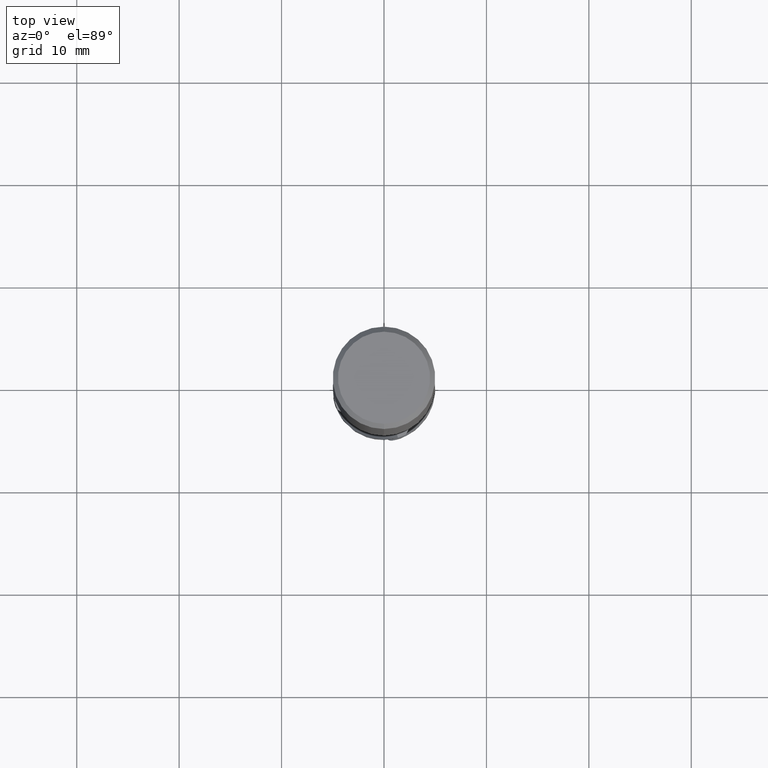
[diagram: clean part render]
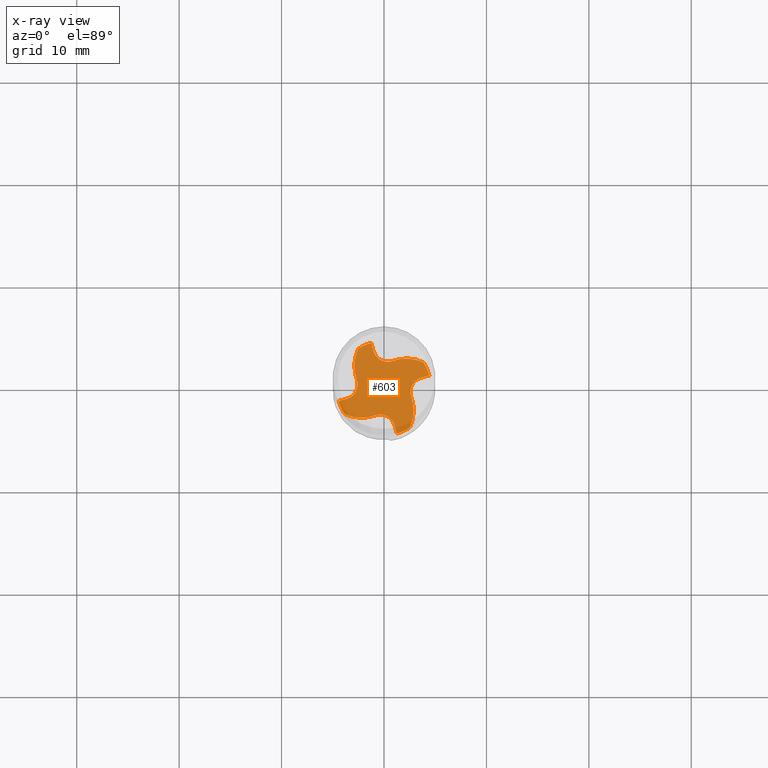
[diagram: x-ray — body ghosted, one internal face saturated and labeled with its STEP entity id]
A machine part, top view, then the same camera in x-ray: the body is ghosted and one INTERNAL B-rep face — a face not visible from any outside direction — is saturated and labeled: STEP entity #603.
In plain terms, the highlighted planar face has unit normal (0, 0, -1).
Its self-contained STEP definition (entity closure, byte-faithful):
#531=EDGE_CURVE('',#577,#921,#1512,.T.);
#553=EDGE_CURVE('',#657,#903,#1537,.T.);
#577=VERTEX_POINT('',#1562);
#579=EDGE_CURVE('',#1281,#689,#1564,.T.);
#603=ADVANCED_FACE('',(#1593),#1594,.T.);
#657=VERTEX_POINT('',#1650);
#661=EDGE_CURVE('',#921,#1133,#1654,.T.);
#689=VERTEX_POINT('',#1685);
#693=EDGE_CURVE('',#919,#1087,#1689,.T.);
#777=VERTEX_POINT('',#1781);
#847=EDGE_CURVE('',#777,#919,#1860,.T.);
#861=EDGE_CURVE('',#1181,#777,#1875,.T.);
#873=VERTEX_POINT('',#1887);
#903=VERTEX_POINT('',#1921);
#919=VERTEX_POINT('',#1938);
#921=VERTEX_POINT('',#1940);
#939=VERTEX_POINT('',#1960);
#977=EDGE_CURVE('',#1291,#995,#2004,.T.);
#983=EDGE_CURVE('',#903,#1181,#2013,.T.);
#995=VERTEX_POINT('',#2026);
#1001=EDGE_CURVE('',#1087,#1291,#2032,.T.);
#1057=EDGE_CURVE('',#873,#577,#2091,.T.);
#1087=VERTEX_POINT('',#2122);
#1133=VERTEX_POINT('',#2171);
#1157=EDGE_CURVE('',#939,#1281,#2197,.T.);
#1181=VERTEX_POINT('',#2222);
#1223=EDGE_CURVE('',#1133,#1403,#2267,.T.);
#1281=VERTEX_POINT('',#2328);
#1291=VERTEX_POINT('',#2338);
#1331=EDGE_CURVE('',#1403,#657,#2382,.T.);
#1351=EDGE_CURVE('',#689,#873,#2404,.T.);
#1403=VERTEX_POINT('',#2460);
#1417=EDGE_CURVE('',#995,#939,#2476,.T.);
#1512=CIRCLE('',#2601,3.978);
#1537=CIRCLE('',#2706,3.978);
#1562=CARTESIAN_POINT('',(-2.62815486418103,0.751553896561688,-59.0000000000003));
#1564=CIRCLE('',#2780,4.59995);
#1593=FACE_OUTER_BOUND('',#3071,.T.);
#1594=PLANE('',#3072);
#1650=CARTESIAN_POINT('',(0.751553896561688,2.62815486418106,-59.0000000000003));
#1654=CIRCLE('',#3409,4.59995);
#1685=CARTESIAN_POINT('',(-4.42682930070273,-1.25008893481215,-59.0));
#1689=CIRCLE('',#3884,3.978);
#1781=CARTESIAN_POINT('',(3.62089701929082,1.0225023352925,-59.0000000000003));
#1860=CIRCLE('',#4902,1.4375);
#1875=LINE('',#4939,#4940);
#1887=CARTESIAN_POINT('',(-3.6208970192908,-1.0225023352925,-59.0000000000003));
#1921=CARTESIAN_POINT('',(3.84286764021476,2.52822236013573,-59.0));
#1938=CARTESIAN_POINT('',(2.62815486418106,-0.751553896561688,-59.0000000000003));
#1940=CARTESIAN_POINT('',(-2.52822236013566,3.8428676402148,-59.0));
#1960=CARTESIAN_POINT('',(-0.751553896561688,-2.62815486418102,-59.0000000000003));
#2004=LINE('',#6259,#6260);
#2013=CIRCLE('',#6270,4.59995);
#2026=CARTESIAN_POINT('',(1.0225023352925,-3.62089701929079,-59.0000000000003));
#2032=CIRCLE('',#6339,4.59995);
#2091=CIRCLE('',#6752,1.4375);
#2122=CARTESIAN_POINT('',(2.52822236013545,-3.84286764021494,-59.0000000000003));
#2171=CARTESIAN_POINT('',(-1.25008893481215,4.42682930070273,-59.0));
#2197=CIRCLE('',#7585,3.978);
#2222=CARTESIAN_POINT('',(4.42682930070273,1.25008893481215,-59.0000000000003));
#2267=LINE('',#7823,#7824);
#2328=CARTESIAN_POINT('',(-3.84286764021481,-2.52822236013564,-59.0));
#2338=CARTESIAN_POINT('',(1.25008893481215,-4.42682930070273,-59.0));
#2382=CIRCLE('',#8248,1.4375);
#2404=LINE('',#8291,#8292);
#2460=CARTESIAN_POINT('',(-1.0225023352925,3.62089701929082,-59.0000000000003));
#2476=CIRCLE('',#8669,1.4375);
#2601=AXIS2_PLACEMENT_3D('',#9033,#9034,#9035);
#2706=AXIS2_PLACEMENT_3D('',#9065,#9066,#9067);
#2780=AXIS2_PLACEMENT_3D('',#9082,#9083,#9084);
#3071=EDGE_LOOP('',(#9137,#9138,#9139,#9140,#9141,#9142,#9143,#9144,#9145,#9146,#9147,#9148,#9149,#9150,#9151,#9152));
#3072=AXIS2_PLACEMENT_3D('',#9153,#9154,#9155);
#3409=AXIS2_PLACEMENT_3D('',#9189,#9190,#9191);
#3884=AXIS2_PLACEMENT_3D('',#9249,#9250,#9251);
#4902=AXIS2_PLACEMENT_3D('',#9441,#9442,#9443);
#4939=CARTESIAN_POINT('',(3.62089701929082,1.0225023352925,-59.0000000000003));
#4940=VECTOR('',#9457,0.999999999999999);
#6259=CARTESIAN_POINT('',(1.0225023352925,-3.62089701929079,-59.0000000000003));
#6260=VECTOR('',#9617,0.999999999999999);
#6270=AXIS2_PLACEMENT_3D('',#9634,#9635,#9636);
#6339=AXIS2_PLACEMENT_3D('',#9647,#9648,#9649);
#6752=AXIS2_PLACEMENT_3D('',#9684,#9685,#9686);
#7585=AXIS2_PLACEMENT_3D('',#9761,#9762,#9763);
#7823=CARTESIAN_POINT('',(-1.0225023352925,3.62089701929082,-59.0000000000003));
#7824=VECTOR('',#9818,0.999999999999999);
#8248=AXIS2_PLACEMENT_3D('',#9897,#9898,#9899);
#8291=CARTESIAN_POINT('',(-3.6208970192908,-1.0225023352925,-59.0000000000003));
#8292=VECTOR('',#9921,0.999999999999999);
#8669=AXIS2_PLACEMENT_3D('',#9996,#9997,#9998);
#9033=CARTESIAN_POINT('',(1.08499430580805,2.17879152268054,-59.0000000000003));
#9034=DIRECTION('',(4.05231403988182E-015,2.77555756156289E-015,-1.0));
#9035=DIRECTION('',(-0.93342110859454,-0.358782711442651,-4.77833753118239E-015));
#9065=CARTESIAN_POINT('',(2.17879152268054,-1.08499430580802,-59.0000000000003));
#9066=DIRECTION('',(2.77555756156289E-015,-4.05231403988182E-015,-1.0));
#9067=DIRECTION('',(-0.358782711442651,0.93342110859454,-4.77833753118239E-015));
#9082=CARTESIAN_POINT('',(0.0,0.0,-59.0));
#9083=DIRECTION('',(0.0,0.0,-1.0));
#9084=DIRECTION('',(0.0,1.0,0.0));
#9137=ORIENTED_EDGE('',*,*,#977,.T.);
#9138=ORIENTED_EDGE('',*,*,#1417,.T.);
#9139=ORIENTED_EDGE('',*,*,#1157,.T.);
#9140=ORIENTED_EDGE('',*,*,#579,.T.);
#9141=ORIENTED_EDGE('',*,*,#1351,.T.);
#9142=ORIENTED_EDGE('',*,*,#1057,.T.);
#9143=ORIENTED_EDGE('',*,*,#531,.T.);
#9144=ORIENTED_EDGE('',*,*,#661,.T.);
#9145=ORIENTED_EDGE('',*,*,#1223,.T.);
#9146=ORIENTED_EDGE('',*,*,#1331,.T.);
#9147=ORIENTED_EDGE('',*,*,#553,.T.);
#9148=ORIENTED_EDGE('',*,*,#983,.T.);
#9149=ORIENTED_EDGE('',*,*,#861,.T.);
#9150=ORIENTED_EDGE('',*,*,#847,.T.);
#9151=ORIENTED_EDGE('',*,*,#693,.T.);
#9152=ORIENTED_EDGE('',*,*,#1001,.T.);
#9153=CARTESIAN_POINT('',(0.0,2.299975,-59.0));
#9154=DIRECTION('',(0.0,0.0,-1.0));
#9155=DIRECTION('',(0.0,1.0,0.0));
#9189=CARTESIAN_POINT('',(0.0,0.0,-59.0));
#9190=DIRECTION('',(0.0,0.0,-1.0));
#9191=DIRECTION('',(0.0,1.0,0.0));
#9249=CARTESIAN_POINT('',(-1.08499430580802,-2.17879152268054,-59.0000000000003));
#9250=DIRECTION('',(-4.05231403988182E-015,-2.77555756156289E-015,-1.0));
#9251=DIRECTION('',(0.93342110859454,0.358782711442651,-4.77833753118239E-015));
#9441=CARTESIAN_POINT('',(4.01155405781517,-0.360896858193911,-59.0000000000003));
#9442=DIRECTION('',(4.05231403988182E-015,2.77555756156289E-015,1.0));
#9443=DIRECTION('',(-0.962364656309244,-0.271761417951098,4.65409326678321E-015));
#9457=DIRECTION('',(-0.962364656290339,-0.271761418018045,4.66293670342566E-015));
#9617=DIRECTION('',(-0.271761418018045,0.962364656290339,4.66293670342566E-015));
#9634=CARTESIAN_POINT('',(0.0,0.0,-59.0));
#9635=DIRECTION('',(0.0,0.0,-1.0));
#9636=DIRECTION('',(0.0,1.0,0.0));
#9647=CARTESIAN_POINT('',(0.0,0.0,-59.0));
#9648=DIRECTION('',(0.0,0.0,-1.0));
#9649=DIRECTION('',(0.0,1.0,0.0));
#9684=CARTESIAN_POINT('',(-4.01155405781515,0.360896858193911,-59.0000000000003));
#9685=DIRECTION('',(-4.05231403988182E-015,-2.77555756156289E-015,1.0));
#9686=DIRECTION('',(0.962364656309244,0.271761417951098,4.65409326678321E-015));
#9761=CARTESIAN_POINT('',(-2.17879152268054,1.08499430580806,-59.0000000000003));
#9762=DIRECTION('',(-2.77555756156289E-015,4.05231403988182E-015,-1.0));
#9763=DIRECTION('',(0.358782711442651,-0.93342110859454,-4.77833753118239E-015));
#9818=DIRECTION('',(0.271761418018045,-0.962364656290339,4.66293670342566E-015));
#9897=CARTESIAN_POINT('',(0.360896858193911,4.01155405781517,-59.0000000000003));
#9898=DIRECTION('',(-2.77555756156289E-015,4.05231403988182E-015,1.0));
#9899=DIRECTION('',(0.271761417951098,-0.962364656309244,4.65409326678321E-015));
#9921=DIRECTION('',(0.962364656290339,0.271761418018045,4.66293670342566E-015));
#9996=CARTESIAN_POINT('',(-0.360896858193911,-4.01155405781513,-59.0000000000003));
#9997=DIRECTION('',(2.77555756156289E-015,-4.05231403988182E-015,1.0));
#9998=DIRECTION('',(-0.271761417951098,0.962364656309244,4.65409326678321E-015));